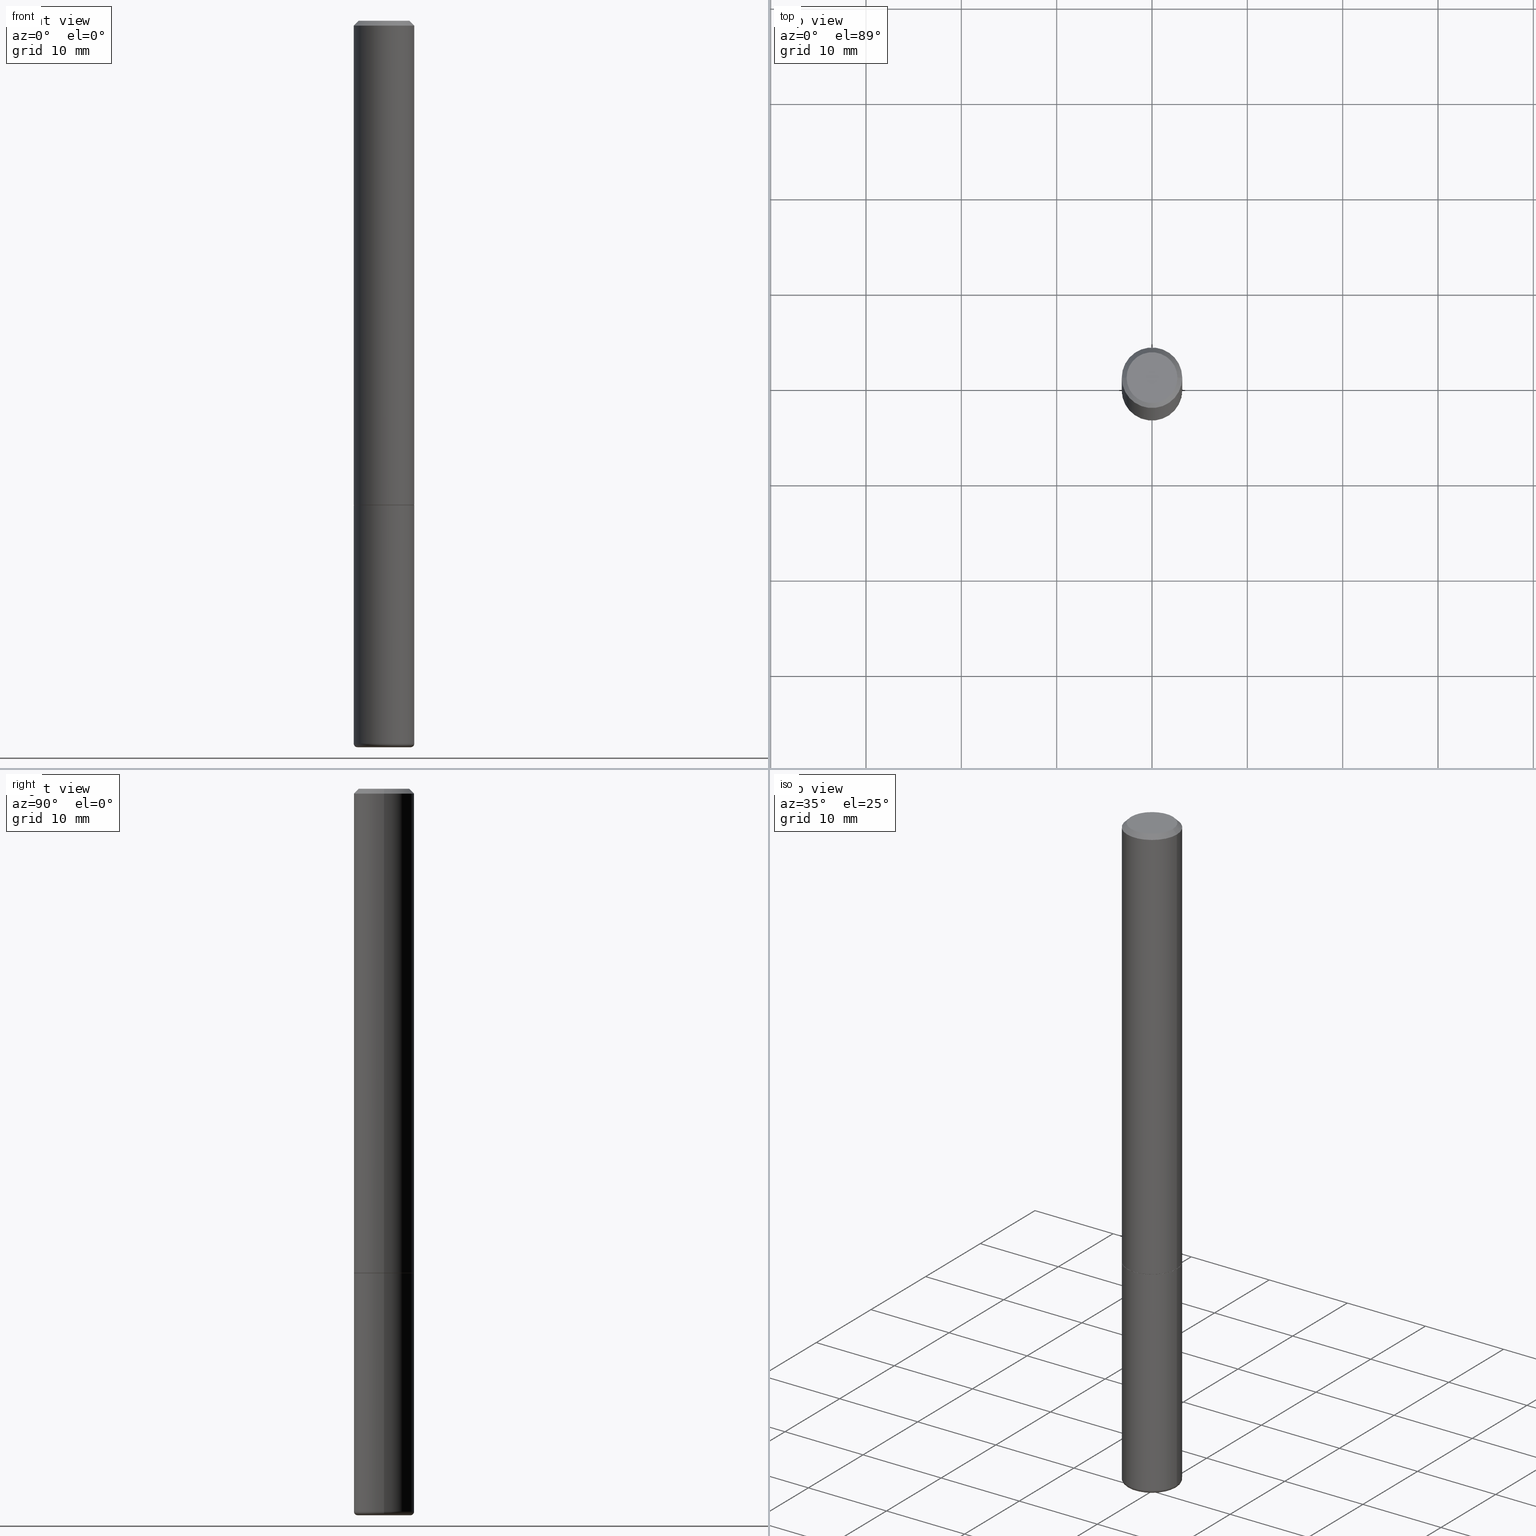
[diagram: canonical four-view strip — front | top / right | iso, engineering-drawing reading convention]
A machine part, canonical four-view strip (front | top / right | iso — engineering-drawing reading convention). The complete STEP part file that produces these views, byte-faithful:
ISO-10303-21;
HEADER;
FILE_DESCRIPTION (( 'STEP AP203' ),
    '1' );
FILE_NAME ('77130.STEP',
    '2024-03-06T16:05:19',
    ( '' ),
    ( '' ),
    'SwSTEP 2.0',
    'SolidWorks 2023',
    '' );
FILE_SCHEMA (( 'CONFIG_CONTROL_DESIGN' ));
ENDSEC;

DATA;
#1 = DIRECTION ( 'NONE',  ( -6.982962677686266711E-15, -1.000000000000000000, 3.491481338843145583E-15 ) ) ;
#2 = ADVANCED_FACE ( 'NONE', ( #209 ), #306, .T. ) ;
#3 = FACE_OUTER_BOUND ( 'NONE', #317, .T. ) ;
#4 = CARTESIAN_POINT ( 'NONE',  ( -0.1249999999999999584, 8.030407079339200406E-16, -0.02000000000000006287 ) ) ;
#5 = CARTESIAN_POINT ( 'NONE',  ( 4.890937612370288923E-31, -6.982962677686312563E-17, -0.02000000000000006287 ) ) ;
#6 = DIRECTION ( 'NONE',  ( 1.000000000000000000, -6.982962677686266711E-15, 4.876176775795935793E-29 ) ) ;
#7 = CARTESIAN_POINT ( 'NONE',  ( 4.890937612370273754E-29, -6.982962677686291954E-15, -2.000000000000000444 ) ) ;
#8 = AXIS2_PLACEMENT_3D ( 'NONE', #389, #265, #112 ) ;
#9 = EDGE_CURVE ( 'NONE', #223, #99, #175, .T. ) ;
#10 = COORDINATED_UNIVERSAL_TIME_OFFSET ( 5, 0, .BEHIND. ) ;
#11 =( NAMED_UNIT ( * ) PLANE_ANGLE_UNIT ( ) SI_UNIT ( $, .RADIAN. ) );
#12 = DIRECTION ( 'NONE',  ( 1.000000000000000000, -6.982962677686262766E-15, 0.000000000000000000 ) ) ;
#13 = VECTOR ( 'NONE', #17, 39.37007874015748143 ) ;
#14 = AXIS2_PLACEMENT_3D ( 'NONE', #143, #107, #323 ) ;
#15 = APPROVAL_STATUS ( 'not_yet_approved' ) ;
#16 = CARTESIAN_POINT ( 'NONE',  ( 7.299724386462632472E-29, -1.042207179644678967E-14, -2.984999999999999876 ) ) ;
#17 = DIRECTION ( 'NONE',  ( 0.7071067811865459074, -7.319954787623249734E-15, -0.7071067811865491270 ) ) ;
#18 = VERTEX_POINT ( 'NONE', #245 ) ;
#19 = CIRCLE ( 'NONE', #405, 0.1100000000000000006 ) ;
#20 = SHAPE_DEFINITION_REPRESENTATION ( #328, #43 ) ;
#21 = CARTESIAN_POINT ( 'NONE',  ( 7.332110811570581229E-16, 0.1050000000000000377, -3.922166155191328542E-16 ) ) ;
#22 = DIRECTION ( 'NONE',  ( 1.000000000000000000, -6.982962677686267499E-15, 4.874400871621236533E-29 ) ) ;
#23 = LINE ( 'NONE', #155, #53 ) ;
#24 = ORIENTED_EDGE ( 'NONE', *, *, #57, .T. ) ;
#25 = ORIENTED_EDGE ( 'NONE', *, *, #113, .F. ) ;
#26 = VERTEX_POINT ( 'NONE', #56 ) ;
#27 = CIRCLE ( 'NONE', #400, 0.1250000000000000000 ) ;
#28 = AXIS2_PLACEMENT_3D ( 'NONE', #184, #55, #117 ) ;
#29 = AXIS2_PLACEMENT_3D ( 'NONE', #198, #167, #387 ) ;
#30 = APPROVAL ( #79, 'UNSPECIFIED' ) ;
#31 = VERTEX_POINT ( 'NONE', #210 ) ;
#32 = CARTESIAN_POINT ( 'NONE',  ( 4.890937612370273194E-29, -6.982962677686291165E-15, -2.000000000000000000 ) ) ;
#33 = CARTESIAN_POINT ( 'NONE',  ( 0.1100000000000000006, -1.124256991107492790E-14, -3.000000000000000888 ) ) ;
#34 = DIRECTION ( 'NONE',  ( 1.000000000000000000, -6.982962677686262766E-15, 0.000000000000000000 ) ) ;
#35 = ADVANCED_FACE ( 'NONE', ( #309 ), #373, .F. ) ;
#36 = AXIS2_PLACEMENT_3D ( 'NONE', #236, #221, #229 ) ;
#37 = DIRECTION ( 'NONE',  ( 1.000000000000000000, -6.982962677686267499E-15, 4.874400871621236533E-29 ) ) ;
#38 = DESIGN_CONTEXT ( 'detailed design', #231, 'design' ) ;
#39 = EDGE_LOOP ( 'NONE', ( #282, #285, #361, #250 ) ) ;
#40 = FACE_OUTER_BOUND ( 'NONE', #182, .T. ) ;
#41 = DIRECTION ( 'NONE',  ( 1.000000000000000000, -6.982962677686266711E-15, 4.876176775795935793E-29 ) ) ;
#42 = CARTESIAN_POINT ( 'NONE',  ( -0.1250000000000000000, 8.881784197001252323E-16, -6.148668862818632227E-30 ) ) ;
#43 = ADVANCED_BREP_SHAPE_REPRESENTATION ( '77130', ( #369, #98, #173 ), #123 ) ;
#44 = FACE_OUTER_BOUND ( 'NONE', #39, .T. ) ;
#45 = DATE_AND_TIME ( #200, #345 ) ;
#46 = EDGE_CURVE ( 'NONE', #18, #26, #203, .T. ) ;
#47 = DIRECTION ( 'NONE',  ( 1.000000000000000000, -6.982962677686267499E-15, 0.000000000000000000 ) ) ;
#48 = PERSON_AND_ORGANIZATION ( #375, #111 ) ;
#49 = LOCAL_TIME ( 11, 5, 19.00000000000000000, #147 ) ;
#50 = DATE_AND_TIME ( #397, #204 ) ;
#51 = EDGE_CURVE ( 'NONE', #115, #320, #299, .T. ) ;
#52 = VECTOR ( 'NONE', #228, 39.37007874015748143 ) ;
#53 = VECTOR ( 'NONE', #411, 39.37007874015748143 ) ;
#54 = COORDINATED_UNIVERSAL_TIME_OFFSET ( 5, 0, .BEHIND. ) ;
#55 = DIRECTION ( 'NONE',  ( -2.445468806185136597E-29, 3.491481338843145583E-15, 1.000000000000000000 ) ) ;
#56 = CARTESIAN_POINT ( 'NONE',  ( 0.1250000000000001943, -1.129494213115757459E-14, -2.984999999999999876 ) ) ;
#57 = EDGE_CURVE ( 'NONE', #153, #156, #109, .T. ) ;
#58 = ORIENTED_EDGE ( 'NONE', *, *, #336, .T. ) ;
#59 = PRODUCT_DEFINITION ( 'UNKNOWN', '', #379, #38 ) ;
#60 = AXIS2_PLACEMENT_3D ( 'NONE', #105, #319, #327 ) ;
#61 = DIRECTION ( 'NONE',  ( -2.445468806185136597E-29, 3.491481338843145583E-15, 1.000000000000000000 ) ) ;
#62 = ORIENTED_EDGE ( 'NONE', *, *, #9, .F. ) ;
#63 = DIRECTION ( 'NONE',  ( -1.000000000000000000, 6.982962677686265922E-15, -4.876176775795935793E-29 ) ) ;
#64 = DIRECTION ( 'NONE',  ( -2.445468806185136597E-29, 3.491481338843145583E-15, 1.000000000000000000 ) ) ;
#65 = AXIS2_PLACEMENT_3D ( 'NONE', #86, #343, #63 ) ;
#66 = DIRECTION ( 'NONE',  ( -1.000000000000000000, 6.982962677686265922E-15, -4.876176775795935793E-29 ) ) ;
#67 = PLANE ( 'NONE',  #77 ) ;
#68 = AXIS2_PLACEMENT_3D ( 'NONE', #187, #354, #162 ) ;
#69 = PERSON_AND_ORGANIZATION_ROLE ( 'design_owner' ) ;
#70 = CONICAL_SURFACE ( 'NONE', #186, 0.1249999999999999584, 0.7853981633974460586 ) ;
#71 = DIRECTION ( 'NONE',  ( 1.000000000000000000, -6.982962677686262766E-15, 0.000000000000000000 ) ) ;
#72 = CARTESIAN_POINT ( 'NONE',  ( 4.890937612370288923E-31, -6.982962677686312563E-17, -0.02000000000000006287 ) ) ;
#73 = DIRECTION ( 'NONE',  ( -1.000000000000000000, 6.982962677686267499E-15, 0.000000000000000000 ) ) ;
#74 = DIRECTION ( 'NONE',  ( 1.000000000000000000, -6.982962677686209124E-15, 0.000000000000000000 ) ) ;
#75 = DIRECTION ( 'NONE',  ( 1.000000000000000000, -6.982962677686264344E-15, 0.000000000000000000 ) ) ;
#76 = PERSON_AND_ORGANIZATION ( #375, #111 ) ;
#77 = AXIS2_PLACEMENT_3D ( 'NONE', #348, #222, #66 ) ;
#78 = DIRECTION ( 'NONE',  ( -2.445468806185136597E-29, 3.491481338843145583E-15, 1.000000000000000000 ) ) ;
#79 = APPROVAL_STATUS ( 'not_yet_approved' ) ;
#80 = CARTESIAN_POINT ( 'NONE',  ( 1.252621697202263706E-45, -1.788411804456536750E-31, -5.122214988120493535E-17 ) ) ;
#81 = EDGE_CURVE ( 'NONE', #305, #31, #27, .T. ) ;
#82 = VECTOR ( 'NONE', #237, 39.37007874015748143 ) ;
#83 = AXIS2_PLACEMENT_3D ( 'NONE', #202, #78, #75 ) ;
#84 = ORIENTED_EDGE ( 'NONE', *, *, #163, .F. ) ;
#85 = EDGE_CURVE ( 'NONE', #26, #31, #304, .T. ) ;
#86 = CARTESIAN_POINT ( 'NONE',  ( 4.890937612370273754E-29, -6.982962677686291954E-15, -2.000000000000000444 ) ) ;
#87 = EDGE_LOOP ( 'NONE', ( #216, #254, #211, #174 ) ) ;
#88 = PERSON_AND_ORGANIZATION ( #375, #111 ) ;
#89 = CARTESIAN_POINT ( 'NONE',  ( 7.299724386462632472E-29, -1.042207179644678967E-14, -2.984999999999999876 ) ) ;
#90 = EDGE_CURVE ( 'NONE', #223, #364, #283, .T. ) ;
#91 = SECURITY_CLASSIFICATION_LEVEL ( 'unclassified' ) ;
#92 = EDGE_LOOP ( 'NONE', ( #314, #380, #128, #372 ) ) ;
#93 = ADVANCED_FACE ( 'NONE', ( #318 ), #151, .T. ) ;
#94 = FACE_OUTER_BOUND ( 'NONE', #96, .T. ) ;
#95 = EDGE_LOOP ( 'NONE', ( #311, #24, #130, #381 ) ) ;
#96 = EDGE_LOOP ( 'NONE', ( #247, #104 ) ) ;
#97 = CC_DESIGN_PERSON_AND_ORGANIZATION_ASSIGNMENT ( #88, #246, ( #252 ) ) ;
#98 = MANIFOLD_SOLID_BREP ( 'Body-Move/Copy2[2]', #287 ) ;
#99 = VERTEX_POINT ( 'NONE', #108 ) ;
#100 = PRODUCT ( '77130', '77130', '', ( #197 ) ) ;
#101 = CARTESIAN_POINT ( 'NONE',  ( -0.1100000000000000006, -9.613370191969994157E-15, -3.000000000000000888 ) ) ;
#102 = CC_DESIGN_APPROVAL ( #398, ( #252 ) ) ;
#103 = DIRECTION ( 'NONE',  ( 1.000000000000000000, -6.982962677686262766E-15, 0.000000000000000000 ) ) ;
#104 = ORIENTED_EDGE ( 'NONE', *, *, #81, .T. ) ;
#105 = CARTESIAN_POINT ( 'NONE',  ( 4.890937612370288923E-31, -6.982962677686312563E-17, -0.02000000000000006287 ) ) ;
#106 = DIRECTION ( 'NONE',  ( 1.000000000000000000, -6.982962677686262766E-15, 0.000000000000000000 ) ) ;
#107 = DIRECTION ( 'NONE',  ( -2.438088387897960049E-29, 3.491481338843145188E-15, 1.000000000000000000 ) ) ;
#108 = CARTESIAN_POINT ( 'NONE',  ( 0.1249999999999999584, -9.273918764983043491E-16, -0.02000000000000006287 ) ) ;
#109 = CIRCLE ( 'NONE', #122, 0.1100000000000000006 ) ;
#110 = PERSON_AND_ORGANIZATION ( #375, #111 ) ;
#111 = ORGANIZATION ( 'UNSPECIFIED', 'UNSPECIFIED', '' ) ;
#112 = DIRECTION ( 'NONE',  ( 1.000000000000000000, -6.982962677686266711E-15, 4.876176775795935232E-29 ) ) ;
#113 = EDGE_CURVE ( 'NONE', #251, #99, #335, .T. ) ;
#114 = COORDINATED_UNIVERSAL_TIME_OFFSET ( 5, 0, .BEHIND. ) ;
#115 = VERTEX_POINT ( 'NONE', #190 ) ;
#116 = APPROVAL_DATE_TIME ( #50, #30 ) ;
#117 = DIRECTION ( 'NONE',  ( 1.000000000000000000, -6.982962677686264344E-15, 0.000000000000000000 ) ) ;
#118 = APPROVAL_ROLE ( '' ) ;
#119 = AXIS2_PLACEMENT_3D ( 'NONE', #16, #61, #208 ) ;
#120 = FACE_OUTER_BOUND ( 'NONE', #339, .T. ) ;
#121 = ORIENTED_EDGE ( 'NONE', *, *, #51, .T. ) ;
#122 = AXIS2_PLACEMENT_3D ( 'NONE', #333, #404, #362 ) ;
#123 =( GEOMETRIC_REPRESENTATION_CONTEXT ( 3 ) GLOBAL_UNCERTAINTY_ASSIGNED_CONTEXT ( ( #248 ) ) GLOBAL_UNIT_ASSIGNED_CONTEXT ( ( #242, #11, #326 ) ) REPRESENTATION_CONTEXT ( 'NONE', 'WORKASPACE' ) );
#124 = EDGE_CURVE ( 'NONE', #18, #305, #358, .T. ) ;
#125 = APPROVAL_ROLE ( '' ) ;
#126 = APPROVAL ( #232, 'UNSPECIFIED' ) ;
#127 = ORIENTED_EDGE ( 'NONE', *, *, #113, .T. ) ;
#128 = ORIENTED_EDGE ( 'NONE', *, *, #85, .T. ) ;
#129 = EDGE_LOOP ( 'NONE', ( #133, #84 ) ) ;
#130 = ORIENTED_EDGE ( 'NONE', *, *, #224, .T. ) ;
#131 = AXIS2_PLACEMENT_3D ( 'NONE', #325, #233, #6 ) ;
#132 = ORIENTED_EDGE ( 'NONE', *, *, #85, .F. ) ;
#133 = ORIENTED_EDGE ( 'NONE', *, *, #243, .F. ) ;
#134 = DIRECTION ( 'NONE',  ( -2.445468806185136597E-29, 3.491481338843145583E-15, 1.000000000000000000 ) ) ;
#135 = CIRCLE ( 'NONE', #365, 0.1050000000000000377 ) ;
#136 = AXIS2_PLACEMENT_3D ( 'NONE', #356, #192, #34 ) ;
#137 = FACE_OUTER_BOUND ( 'NONE', #92, .T. ) ;
#138 = DIRECTION ( 'NONE',  ( 0.000000000000000000, 0.000000000000000000, 1.000000000000000000 ) ) ;
#139 = CC_DESIGN_PERSON_AND_ORGANIZATION_ASSIGNMENT ( #110, #69, ( #100 ) ) ;
#140 = DIRECTION ( 'NONE',  ( -2.445468806185136597E-29, 3.491481338843145583E-15, 1.000000000000000000 ) ) ;
#141 = CIRCLE ( 'NONE', #185, 0.1249999999999999584 ) ;
#142 = AXIS2_PLACEMENT_3D ( 'NONE', #148, #310, #177 ) ;
#143 = CARTESIAN_POINT ( 'NONE',  ( 4.890937612370273194E-29, -6.982962677686291165E-15, -2.000000000000000000 ) ) ;
#144 = LENGTH_MEASURE_WITH_UNIT ( LENGTH_MEASURE( 0.02539999999999999897 ), #390 );
#145 = AXIS2_PLACEMENT_3D ( 'NONE', #7, #357, #194 ) ;
#146 = CALENDAR_DATE ( 2024, 6, 3 ) ;
#147 = COORDINATED_UNIVERSAL_TIME_OFFSET ( 5, 0, .BEHIND. ) ;
#148 = CARTESIAN_POINT ( 'NONE',  ( 4.890937612370273194E-29, -6.982962677686291165E-15, -2.000000000000000000 ) ) ;
#149 = ORIENTED_EDGE ( 'NONE', *, *, #57, .F. ) ;
#150 = ORIENTED_EDGE ( 'NONE', *, *, #163, .T. ) ;
#151 = CONICAL_SURFACE ( 'NONE', #370, 0.1239999999999999991, 0.7853981633976787613 ) ;
#152 = APPROVAL_PERSON_ORGANIZATION ( #48, #30, #296 ) ;
#153 = VERTEX_POINT ( 'NONE', #101 ) ;
#154 = EDGE_CURVE ( 'NONE', #26, #18, #158, .T. ) ;
#155 = CARTESIAN_POINT ( 'NONE',  ( -0.1250000000000001110, 8.881784197001260212E-16, -6.148668862818637832E-30 ) ) ;
#156 = VERTEX_POINT ( 'NONE', #33 ) ;
#157 = ORIENTED_EDGE ( 'NONE', *, *, #336, .F. ) ;
#158 = CIRCLE ( 'NONE', #261, 0.1250000000000000000 ) ;
#159 = CYLINDRICAL_SURFACE ( 'NONE', #300, 0.1250000000000000000 ) ;
#160 = LOCAL_TIME ( 11, 5, 19.00000000000000000, #54 ) ;
#161 = EDGE_CURVE ( 'NONE', #99, #251, #141, .T. ) ;
#162 = DIRECTION ( 'NONE',  ( 1.000000000000000000, -6.982962677686262766E-15, 0.000000000000000000 ) ) ;
#163 = EDGE_CURVE ( 'NONE', #281, #382, #168, .T. ) ;
#164 = LINE ( 'NONE', #289, #414 ) ;
#165 = EDGE_CURVE ( 'NONE', #156, #153, #19, .T. ) ;
#166 = CYLINDRICAL_SURFACE ( 'NONE', #8, 0.1250000000000001110 ) ;
#167 = DIRECTION ( 'NONE',  ( 7.105427357601001859E-15, 1.000000000000000000, -3.491481338843145583E-15 ) ) ;
#168 = CIRCLE ( 'NONE', #218, 0.1239999999999999991 ) ;
#169 = FACE_OUTER_BOUND ( 'NONE', #129, .T. ) ;
#170 = ADVANCED_FACE ( 'NONE', ( #220 ), #67, .T. ) ;
#171 = PERSON_AND_ORGANIZATION_ROLE ( 'creator' ) ;
#172 = DATE_AND_TIME ( #244, #49 ) ;
#173 = AXIS2_PLACEMENT_3D ( 'NONE', #238, #138, #206 ) ;
#174 = ORIENTED_EDGE ( 'NONE', *, *, #224, .F. ) ;
#175 = LINE ( 'NONE', #303, #13 ) ;
#176 = DIRECTION ( 'NONE',  ( -2.445468806185136597E-29, 3.491481338843145583E-15, 1.000000000000000000 ) ) ;
#177 = DIRECTION ( 'NONE',  ( 1.000000000000000000, -6.982962677686262766E-15, 0.000000000000000000 ) ) ;
#178 = ORIENTED_EDGE ( 'NONE', *, *, #154, .T. ) ;
#179 = CONICAL_SURFACE ( 'NONE', #60, 0.1249999999999999584, 0.7853981633974460586 ) ;
#180 = EDGE_CURVE ( 'NONE', #364, #223, #135, .T. ) ;
#181 = ORIENTED_EDGE ( 'NONE', *, *, #51, .F. ) ;
#182 = EDGE_LOOP ( 'NONE', ( #275, #312, #377, #157 ) ) ;
#183 = ORIENTED_EDGE ( 'NONE', *, *, #234, .F. ) ;
#184 = CARTESIAN_POINT ( 'NONE',  ( 4.888492143564088712E-29, -6.979471196347448158E-15, -1.999000000000000110 ) ) ;
#185 = AXIS2_PLACEMENT_3D ( 'NONE', #5, #257, #47 ) ;
#186 = AXIS2_PLACEMENT_3D ( 'NONE', #292, #359, #73 ) ;
#187 = CARTESIAN_POINT ( 'NONE',  ( 7.299724386462632472E-29, -1.042207179644678967E-14, -2.984999999999999876 ) ) ;
#188 = CC_DESIGN_DATE_AND_TIME_ASSIGNMENT ( #363, #329, ( #59 ) ) ;
#189 = ADVANCED_FACE ( 'NONE', ( #3 ), #179, .T. ) ;
#190 = CARTESIAN_POINT ( 'NONE',  ( -0.1250000000000002776, -2.636471991862024185E-15, -1.999000000000000110 ) ) ;
#191 = CARTESIAN_POINT ( 'NONE',  ( 1.252621697202263706E-45, -1.788411804456536750E-31, -5.122214988120493535E-17 ) ) ;
#192 = DIRECTION ( 'NONE',  ( -2.445468806185136597E-29, 3.491481338843145583E-15, 1.000000000000000000 ) ) ;
#193 = CC_DESIGN_APPROVAL ( #30, ( #379 ) ) ;
#194 = DIRECTION ( 'NONE',  ( 1.000000000000000000, -6.982962677686262766E-15, 0.000000000000000000 ) ) ;
#195 = DIRECTION ( 'NONE',  ( -2.445468806185136597E-29, 3.491481338843145583E-15, 1.000000000000000000 ) ) ;
#196 = DIRECTION ( 'NONE',  ( -0.7071067811867103314, 7.493145998870941073E-15, 0.7071067811863844810 ) ) ;
#197 = MECHANICAL_CONTEXT ( 'NONE', #383, 'mechanical' ) ;
#198 = CARTESIAN_POINT ( 'NONE',  ( -0.1100000000000000006, -9.640474787110678770E-15, -2.984999999999999876 ) ) ;
#199 = FACE_OUTER_BOUND ( 'NONE', #408, .T. ) ;
#200 = CALENDAR_DATE ( 2024, 6, 3 ) ;
#201 = ADVANCED_FACE ( 'NONE', ( #40 ), #264, .T. ) ;
#202 = CARTESIAN_POINT ( 'NONE',  ( 4.888492143564088712E-29, -6.979471196347448158E-15, -1.999000000000000110 ) ) ;
#203 = CIRCLE ( 'NONE', #68, 0.1250000000000000000 ) ;
#204 = LOCAL_TIME ( 11, 5, 19.00000000000000000, #10 ) ;
#205 = CC_DESIGN_PERSON_AND_ORGANIZATION_ASSIGNMENT ( #407, #307, ( #379 ) ) ;
#206 = DIRECTION ( 'NONE',  ( 1.000000000000000000, 0.000000000000000000, 0.000000000000000000 ) ) ;
#207 = DIRECTION ( 'NONE',  ( -2.445468806185136597E-29, 3.491481338843145583E-15, 1.000000000000000000 ) ) ;
#208 = DIRECTION ( 'NONE',  ( 1.000000000000000000, -6.982962677686271444E-15, 4.883557194083114583E-29 ) ) ;
#209 = FACE_OUTER_BOUND ( 'NONE', #87, .T. ) ;
#210 = CARTESIAN_POINT ( 'NONE',  ( 0.1250000000000000000, -7.855833012397075293E-15, -2.000000000000000444 ) ) ;
#211 = ORIENTED_EDGE ( 'NONE', *, *, #154, .F. ) ;
#212 = PLANE ( 'NONE',  #65 ) ;
#213 = ORIENTED_EDGE ( 'NONE', *, *, #234, .T. ) ;
#214 = ORIENTED_EDGE ( 'NONE', *, *, #165, .F. ) ;
#215 = EDGE_LOOP ( 'NONE', ( #337, #416 ) ) ;
#216 = ORIENTED_EDGE ( 'NONE', *, *, #165, .T. ) ;
#217 = CC_DESIGN_PERSON_AND_ORGANIZATION_ASSIGNMENT ( #367, #293, ( #59 ) ) ;
#218 = AXIS2_PLACEMENT_3D ( 'NONE', #32, #134, #103 ) ;
#219 = CIRCLE ( 'NONE', #145, 0.1250000000000000000 ) ;
#220 = FACE_OUTER_BOUND ( 'NONE', #403, .T. ) ;
#221 = DIRECTION ( 'NONE',  ( -2.445468806185136597E-29, 3.491481338843145583E-15, 1.000000000000000000 ) ) ;
#222 = DIRECTION ( 'NONE',  ( 2.438088387897960049E-29, -3.491481338843145188E-15, -1.000000000000000000 ) ) ;
#223 = VERTEX_POINT ( 'NONE', #394 ) ;
#224 = EDGE_CURVE ( 'NONE', #156, #26, #330, .T. ) ;
#225 = LINE ( 'NONE', #352, #308 ) ;
#226 = CARTESIAN_POINT ( 'NONE',  ( 0.1250000000000001110, -8.728703347107841277E-16, 6.095220969744924646E-30 ) ) ;
#227 = DIRECTION ( 'NONE',  ( -0.7071067811865459074, 2.468850131082240100E-15, -0.7071067811865491270 ) ) ;
#228 = DIRECTION ( 'NONE',  ( -2.445468806185136877E-29, 3.491481338843145188E-15, 1.000000000000000000 ) ) ;
#229 = DIRECTION ( 'NONE',  ( 1.000000000000000000, -6.982962677686266711E-15, 4.876176775795935232E-29 ) ) ;
#230 = CARTESIAN_POINT ( 'NONE',  ( 0.000000000000000000, 0.000000000000000000, 0.000000000000000000 ) ) ;
#231 = APPLICATION_CONTEXT ( 'configuration controlled 3d designs of mechanical parts and assemblies' ) ;
#232 = APPROVAL_STATUS ( 'not_yet_approved' ) ;
#233 = DIRECTION ( 'NONE',  ( -2.445468806185136597E-29, 3.491481338843145583E-15, 1.000000000000000000 ) ) ;
#234 = EDGE_CURVE ( 'NONE', #382, #320, #225, .T. ) ;
#235 = CALENDAR_DATE ( 2024, 6, 3 ) ;
#236 = CARTESIAN_POINT ( 'NONE',  ( 0.000000000000000000, 0.000000000000000000, 0.000000000000000000 ) ) ;
#237 = DIRECTION ( 'NONE',  ( -2.445468806185136877E-29, 3.491481338843145188E-15, 1.000000000000000000 ) ) ;
#238 = CARTESIAN_POINT ( 'NONE',  ( 0.000000000000000000, 0.000000000000000000, 0.000000000000000000 ) ) ;
#239 = ORIENTED_EDGE ( 'NONE', *, *, #298, .F. ) ;
#240 = CARTESIAN_POINT ( 'NONE',  ( -0.1239999999999999991, -6.096591230995543750E-15, -2.000000000000000000 ) ) ;
#241 = VECTOR ( 'NONE', #227, 39.37007874015748143 ) ;
#242 =( CONVERSION_BASED_UNIT ( 'INCH', #144 ) LENGTH_UNIT ( ) NAMED_UNIT ( #274 ) );
#243 = EDGE_CURVE ( 'NONE', #382, #281, #371, .T. ) ;
#244 = CALENDAR_DATE ( 2024, 6, 3 ) ;
#245 = CARTESIAN_POINT ( 'NONE',  ( -0.1250000000000001943, -9.533893376746662859E-15, -2.984999999999999876 ) ) ;
#246 = PERSON_AND_ORGANIZATION_ROLE ( 'classification_officer' ) ;
#247 = ORIENTED_EDGE ( 'NONE', *, *, #401, .T. ) ;
#248 = UNCERTAINTY_MEASURE_WITH_UNIT (LENGTH_MEASURE( 1.000000000000000082E-05 ), #242, 'distance_accuracy_value', 'NONE');
#249 = EDGE_CURVE ( 'NONE', #281, #115, #164, .T. ) ;
#250 = ORIENTED_EDGE ( 'NONE', *, *, #417, .F. ) ;
#251 = VERTEX_POINT ( 'NONE', #4 ) ;
#252 = SECURITY_CLASSIFICATION ( '', '', #91 ) ;
#253 = ADVANCED_FACE ( 'NONE', ( #137 ), #258, .T. ) ;
#254 = ORIENTED_EDGE ( 'NONE', *, *, #338, .T. ) ;
#255 = CARTESIAN_POINT ( 'NONE',  ( 4.890937612370273194E-29, -6.982962677686291165E-15, -2.000000000000000000 ) ) ;
#256 = LINE ( 'NONE', #226, #82 ) ;
#257 = DIRECTION ( 'NONE',  ( -2.445468806185136597E-29, 3.491481338843145583E-15, 1.000000000000000000 ) ) ;
#258 = CYLINDRICAL_SURFACE ( 'NONE', #131, 0.1250000000000000000 ) ;
#259 = CARTESIAN_POINT ( 'NONE',  ( -0.1250000000000000000, -7.814338817366416368E-15, -2.000000000000000444 ) ) ;
#260 = PLANE ( 'NONE',  #14 ) ;
#261 = AXIS2_PLACEMENT_3D ( 'NONE', #286, #385, #291 ) ;
#262 = VECTOR ( 'NONE', #368, 39.37007874015748143 ) ;
#263 = CIRCLE ( 'NONE', #83, 0.1250000000000002498 ) ;
#264 = CYLINDRICAL_SURFACE ( 'NONE', #36, 0.1250000000000001110 ) ;
#265 = DIRECTION ( 'NONE',  ( -2.445468806185136597E-29, 3.491481338843145583E-15, 1.000000000000000000 ) ) ;
#266 = ADVANCED_FACE ( 'NONE', ( #44 ), #70, .T. ) ;
#267 = CC_DESIGN_DATE_AND_TIME_ASSIGNMENT ( #172, #374, ( #252 ) ) ;
#268 = CARTESIAN_POINT ( 'NONE',  ( 0.1239999999999999991, -7.848850049719387701E-15, -2.000000000000000000 ) ) ;
#269 = CARTESIAN_POINT ( 'NONE',  ( -0.1249999999999999584, 8.030407079339200406E-16, -0.02000000000000006287 ) ) ;
#270 = CARTESIAN_POINT ( 'NONE',  ( 0.1250000000000000000, -8.728703347107833388E-16, 6.095220969744919741E-30 ) ) ;
#271 = AXIS2_PLACEMENT_3D ( 'NONE', #388, #1, #74 ) ;
#272 = CIRCLE ( 'NONE', #29, 0.01500000000000040364 ) ;
#273 = APPLICATION_PROTOCOL_DEFINITION ( 'international standard', 'config_control_design', 1994, #231 ) ;
#274 = DIMENSIONAL_EXPONENTS ( 1.000000000000000000, 0.000000000000000000, 0.000000000000000000, 0.000000000000000000, 0.000000000000000000, 0.000000000000000000, 0.000000000000000000 ) ;
#275 = ORIENTED_EDGE ( 'NONE', *, *, #298, .T. ) ;
#276 = APPROVAL_PERSON_ORGANIZATION ( #302, #398, #125 ) ;
#277 = EDGE_LOOP ( 'NONE', ( #415, #412, #239, #183 ) ) ;
#278 = PRODUCT_RELATED_PRODUCT_CATEGORY ( 'detail', '', ( #100 ) ) ;
#279 = DIRECTION ( 'NONE',  ( 2.438088387897960049E-29, -3.491481338843145188E-15, -1.000000000000000000 ) ) ;
#280 = ORIENTED_EDGE ( 'NONE', *, *, #124, .T. ) ;
#281 = VERTEX_POINT ( 'NONE', #240 ) ;
#282 = ORIENTED_EDGE ( 'NONE', *, *, #90, .F. ) ;
#283 = CIRCLE ( 'NONE', #413, 0.1050000000000000377 ) ;
#284 = APPROVAL_PERSON_ORGANIZATION ( #393, #126, #118 ) ;
#285 = ORIENTED_EDGE ( 'NONE', *, *, #9, .T. ) ;
#286 = CARTESIAN_POINT ( 'NONE',  ( 7.299724386462632472E-29, -1.042207179644678967E-14, -2.984999999999999876 ) ) ;
#287 = CLOSED_SHELL ( 'NONE', ( #93, #201, #266, #189, #313, #347, #396, #35 ) ) ;
#288 = FACE_OUTER_BOUND ( 'NONE', #341, .T. ) ;
#289 = CARTESIAN_POINT ( 'NONE',  ( -0.1239999999999999991, -6.101889685343766941E-15, -2.000000000000000000 ) ) ;
#290 = LINE ( 'NONE', #269, #241 ) ;
#291 = DIRECTION ( 'NONE',  ( 1.000000000000000000, -6.982962677686262766E-15, 0.000000000000000000 ) ) ;
#292 = CARTESIAN_POINT ( 'NONE',  ( 4.890937612370288923E-31, -6.982962677686312563E-17, -0.02000000000000006287 ) ) ;
#293 = PERSON_AND_ORGANIZATION_ROLE ( 'creator' ) ;
#294 = ADVANCED_FACE ( 'NONE', ( #199 ), #159, .T. ) ;
#295 = AXIS2_PLACEMENT_3D ( 'NONE', #21, #279, #410 ) ;
#296 = APPROVAL_ROLE ( '' ) ;
#297 = FACE_OUTER_BOUND ( 'NONE', #95, .T. ) ;
#298 = EDGE_CURVE ( 'NONE', #320, #115, #263, .T. ) ;
#299 = CIRCLE ( 'NONE', #28, 0.1250000000000002498 ) ;
#300 = AXIS2_PLACEMENT_3D ( 'NONE', #230, #140, #41 ) ;
#301 = ORIENTED_EDGE ( 'NONE', *, *, #180, .F. ) ;
#302 = PERSON_AND_ORGANIZATION ( #375, #111 ) ;
#303 = CARTESIAN_POINT ( 'NONE',  ( 0.1249999999999999584, -9.273918764983043491E-16, -0.02000000000000006287 ) ) ;
#304 = LINE ( 'NONE', #270, #262 ) ;
#305 = VERTEX_POINT ( 'NONE', #259 ) ;
#306 = TOROIDAL_SURFACE ( 'NONE', #384, 0.1100000000000000006, 0.01500000000000039496 ) ;
#307 = PERSON_AND_ORGANIZATION_ROLE ( 'design_supplier' ) ;
#308 = VECTOR ( 'NONE', #350, 39.37007874015748854 ) ;
#309 = FACE_OUTER_BOUND ( 'NONE', #215, .T. ) ;
#310 = DIRECTION ( 'NONE',  ( -2.445468806185136597E-29, 3.491481338843145583E-15, 1.000000000000000000 ) ) ;
#311 = ORIENTED_EDGE ( 'NONE', *, *, #338, .F. ) ;
#312 = ORIENTED_EDGE ( 'NONE', *, *, #353, .T. ) ;
#313 = ADVANCED_FACE ( 'NONE', ( #288 ), #166, .T. ) ;
#314 = ORIENTED_EDGE ( 'NONE', *, *, #124, .F. ) ;
#315 = ORIENTED_EDGE ( 'NONE', *, *, #249, .F. ) ;
#316 = CONICAL_SURFACE ( 'NONE', #142, 0.1239999999999999991, 0.7853981633976787613 ) ;
#317 = EDGE_LOOP ( 'NONE', ( #62, #301, #418, #127 ) ) ;
#318 = FACE_OUTER_BOUND ( 'NONE', #277, .T. ) ;
#319 = DIRECTION ( 'NONE',  ( 2.445468806185136597E-29, -3.491481338843145583E-15, -1.000000000000000000 ) ) ;
#320 = VERTEX_POINT ( 'NONE', #395 ) ;
#321 = CLOSED_SHELL ( 'NONE', ( #294, #2, #378, #253, #342, #170 ) ) ;
#322 = DIRECTION ( 'NONE',  ( -2.445468806185136597E-29, 3.491481338843145583E-15, 1.000000000000000000 ) ) ;
#323 = DIRECTION ( 'NONE',  ( 1.000000000000000000, -6.982962677686265922E-15, 4.876176775795935793E-29 ) ) ;
#324 = DIRECTION ( 'NONE',  ( 1.000000000000000000, -6.982962677686267499E-15, 0.000000000000000000 ) ) ;
#325 = CARTESIAN_POINT ( 'NONE',  ( 0.000000000000000000, 0.000000000000000000, 0.000000000000000000 ) ) ;
#326 =( NAMED_UNIT ( * ) SI_UNIT ( $, .STERADIAN. ) SOLID_ANGLE_UNIT ( ) );
#327 = DIRECTION ( 'NONE',  ( -1.000000000000000000, 6.982962677686267499E-15, 0.000000000000000000 ) ) ;
#328 = PRODUCT_DEFINITION_SHAPE ( 'NONE', 'NONE',  #59 ) ;
#329 = DATE_TIME_ROLE ( 'creation_date' ) ;
#330 = CIRCLE ( 'NONE', #271, 0.01500000000000040364 ) ;
#331 = CARTESIAN_POINT ( 'NONE',  ( 4.890937612370273754E-29, -6.982962677686291954E-15, -2.000000000000000444 ) ) ;
#332 = COORDINATED_UNIVERSAL_TIME_OFFSET ( 5, 0, .BEHIND. ) ;
#333 = CARTESIAN_POINT ( 'NONE',  ( 7.336406418555412032E-29, -1.047444401652943951E-14, -3.000000000000000888 ) ) ;
#334 = DATE_AND_TIME ( #146, #160 ) ;
#335 = CIRCLE ( 'NONE', #391, 0.1249999999999999584 ) ;
#336 = EDGE_CURVE ( 'NONE', #320, #99, #256, .T. ) ;
#337 = ORIENTED_EDGE ( 'NONE', *, *, #180, .T. ) ;
#338 = EDGE_CURVE ( 'NONE', #153, #18, #272, .T. ) ;
#339 = EDGE_LOOP ( 'NONE', ( #315, #150, #213, #181 ) ) ;
#340 = CC_DESIGN_APPROVAL ( #126, ( #59 ) ) ;
#341 = EDGE_LOOP ( 'NONE', ( #376, #121, #58, #25 ) ) ;
#342 = ADVANCED_FACE ( 'NONE', ( #297 ), #355, .T. ) ;
#343 = DIRECTION ( 'NONE',  ( 2.438088387897960049E-29, -3.491481338843145188E-15, -1.000000000000000000 ) ) ;
#344 = DIRECTION ( 'NONE',  ( 1.000000000000000000, -6.982962677686271444E-15, 4.883557194083114583E-29 ) ) ;
#345 = LOCAL_TIME ( 11, 5, 19.00000000000000000, #332 ) ;
#346 = DIRECTION ( 'NONE',  ( -2.445468806185136597E-29, 3.491481338843145583E-15, 1.000000000000000000 ) ) ;
#347 = ADVANCED_FACE ( 'NONE', ( #120 ), #316, .T. ) ;
#348 = CARTESIAN_POINT ( 'NONE',  ( -3.068898625555318040E-29, -2.537543307287997505E-14, -3.000000000000000888 ) ) ;
#349 = CC_DESIGN_PERSON_AND_ORGANIZATION_ASSIGNMENT ( #76, #171, ( #379 ) ) ;
#350 = DIRECTION ( 'NONE',  ( 0.7071067811867103314, -2.468850131083963367E-15, 0.7071067811863844810 ) ) ;
#351 = ORIENTED_EDGE ( 'NONE', *, *, #401, .F. ) ;
#352 = CARTESIAN_POINT ( 'NONE',  ( 0.1239999999999999991, -7.848850049719387701E-15, -2.000000000000000000 ) ) ;
#353 = EDGE_CURVE ( 'NONE', #115, #251, #23, .T. ) ;
#354 = DIRECTION ( 'NONE',  ( -2.445468806185136597E-29, 3.491481338843145583E-15, 1.000000000000000000 ) ) ;
#355 = TOROIDAL_SURFACE ( 'NONE', #119, 0.1100000000000000006, 0.01500000000000039496 ) ;
#356 = CARTESIAN_POINT ( 'NONE',  ( 4.890937612370273194E-29, -6.982962677686291165E-15, -2.000000000000000000 ) ) ;
#357 = DIRECTION ( 'NONE',  ( -2.445468806185136597E-29, 3.491481338843145583E-15, 1.000000000000000000 ) ) ;
#358 = LINE ( 'NONE', #42, #52 ) ;
#359 = DIRECTION ( 'NONE',  ( 2.445468806185136597E-29, -3.491481338843145583E-15, -1.000000000000000000 ) ) ;
#360 = APPLICATION_PROTOCOL_DEFINITION ( 'international standard', 'config_control_design', 1994, #383 ) ;
#361 = ORIENTED_EDGE ( 'NONE', *, *, #161, .T. ) ;
#362 = DIRECTION ( 'NONE',  ( 1.000000000000000000, -6.982962677686262766E-15, 0.000000000000000000 ) ) ;
#363 = DATE_AND_TIME ( #235, #406 ) ;
#364 = VERTEX_POINT ( 'NONE', #402 ) ;
#365 = AXIS2_PLACEMENT_3D ( 'NONE', #191, #322, #37 ) ;
#366 = CC_DESIGN_SECURITY_CLASSIFICATION ( #252, ( #379 ) ) ;
#367 = PERSON_AND_ORGANIZATION ( #375, #111 ) ;
#368 = DIRECTION ( 'NONE',  ( -2.445468806185136877E-29, 3.491481338843145188E-15, 1.000000000000000000 ) ) ;
#369 = MANIFOLD_SOLID_BREP ( 'Body-Move/Copy2[1]', #321 ) ;
#370 = AXIS2_PLACEMENT_3D ( 'NONE', #255, #392, #71 ) ;
#371 = CIRCLE ( 'NONE', #136, 0.1239999999999999991 ) ;
#372 = ORIENTED_EDGE ( 'NONE', *, *, #81, .F. ) ;
#373 = PLANE ( 'NONE',  #295 ) ;
#374 = DATE_TIME_ROLE ( 'classification_date' ) ;
#375 = PERSON ( 'UNSPECIFIED', 'UNSPECIFIED', 'UNSPECIFIED', ('UNSPECIFIED'), ('UNSPECIFIED'), ('UNSPECIFIED') ) ;
#376 = ORIENTED_EDGE ( 'NONE', *, *, #353, .F. ) ;
#377 = ORIENTED_EDGE ( 'NONE', *, *, #161, .F. ) ;
#378 = ADVANCED_FACE ( 'NONE', ( #94 ), #212, .F. ) ;
#379 = PRODUCT_DEFINITION_FORMATION_WITH_SPECIFIED_SOURCE ( 'ANY', '', #100, .NOT_KNOWN. ) ;
#380 = ORIENTED_EDGE ( 'NONE', *, *, #46, .T. ) ;
#381 = ORIENTED_EDGE ( 'NONE', *, *, #46, .F. ) ;
#382 = VERTEX_POINT ( 'NONE', #268 ) ;
#383 = APPLICATION_CONTEXT ( 'configuration controlled 3d designs of mechanical parts and assemblies' ) ;
#384 = AXIS2_PLACEMENT_3D ( 'NONE', #89, #64, #344 ) ;
#385 = DIRECTION ( 'NONE',  ( -2.445468806185136597E-29, 3.491481338843145583E-15, 1.000000000000000000 ) ) ;
#386 = CARTESIAN_POINT ( 'NONE',  ( 7.336406418555412032E-29, -1.047444401652943951E-14, -3.000000000000000888 ) ) ;
#387 = DIRECTION ( 'NONE',  ( -1.000000000000000000, 7.105427357601058657E-15, 0.000000000000000000 ) ) ;
#388 = CARTESIAN_POINT ( 'NONE',  ( 0.1100000000000000006, -1.119019769099227806E-14, -2.984999999999999876 ) ) ;
#389 = CARTESIAN_POINT ( 'NONE',  ( 0.000000000000000000, 0.000000000000000000, 0.000000000000000000 ) ) ;
#390 =( LENGTH_UNIT ( ) NAMED_UNIT ( * ) SI_UNIT ( $, .METRE. ) );
#391 = AXIS2_PLACEMENT_3D ( 'NONE', #72, #195, #324 ) ;
#392 = DIRECTION ( 'NONE',  ( -2.445468806185136597E-29, 3.491481338843145583E-15, 1.000000000000000000 ) ) ;
#393 = PERSON_AND_ORGANIZATION ( #375, #111 ) ;
#394 = CARTESIAN_POINT ( 'NONE',  ( 0.1050000000000000377, -8.238720831321576644E-16, -5.122214988119949344E-17 ) ) ;
#395 = CARTESIAN_POINT ( 'NONE',  ( 0.1250000000000002498, -7.852341531058233864E-15, -1.999000000000000110 ) ) ;
#396 = ADVANCED_FACE ( 'NONE', ( #169 ), #260, .F. ) ;
#397 = CALENDAR_DATE ( 2024, 6, 3 ) ;
#398 = APPROVAL ( #15, 'UNSPECIFIED' ) ;
#399 = APPROVAL_DATE_TIME ( #45, #126 ) ;
#400 = AXIS2_PLACEMENT_3D ( 'NONE', #331, #176, #12 ) ;
#401 = EDGE_CURVE ( 'NONE', #31, #305, #219, .T. ) ;
#402 = CARTESIAN_POINT ( 'NONE',  ( -0.1050000000000000377, 7.681258945454890818E-16, -5.122214988121018004E-17 ) ) ;
#403 = EDGE_LOOP ( 'NONE', ( #214, #149 ) ) ;
#404 = DIRECTION ( 'NONE',  ( -2.445468806185136597E-29, 3.491481338843145583E-15, 1.000000000000000000 ) ) ;
#405 = AXIS2_PLACEMENT_3D ( 'NONE', #386, #346, #106 ) ;
#406 = LOCAL_TIME ( 11, 5, 19.00000000000000000, #114 ) ;
#407 = PERSON_AND_ORGANIZATION ( #375, #111 ) ;
#408 = EDGE_LOOP ( 'NONE', ( #178, #280, #351, #132 ) ) ;
#409 = APPROVAL_DATE_TIME ( #334, #398 ) ;
#410 = DIRECTION ( 'NONE',  ( -1.000000000000000000, 6.982962677686265922E-15, -4.876176775795935793E-29 ) ) ;
#411 = DIRECTION ( 'NONE',  ( -2.445468806185136877E-29, 3.491481338843145188E-15, 1.000000000000000000 ) ) ;
#412 = ORIENTED_EDGE ( 'NONE', *, *, #249, .T. ) ;
#413 = AXIS2_PLACEMENT_3D ( 'NONE', #80, #207, #22 ) ;
#414 = VECTOR ( 'NONE', #196, 39.37007874015748854 ) ;
#415 = ORIENTED_EDGE ( 'NONE', *, *, #243, .T. ) ;
#416 = ORIENTED_EDGE ( 'NONE', *, *, #90, .T. ) ;
#417 = EDGE_CURVE ( 'NONE', #364, #251, #290, .T. ) ;
#418 = ORIENTED_EDGE ( 'NONE', *, *, #417, .T. ) ;
ENDSEC;
END-ISO-10303-21;
